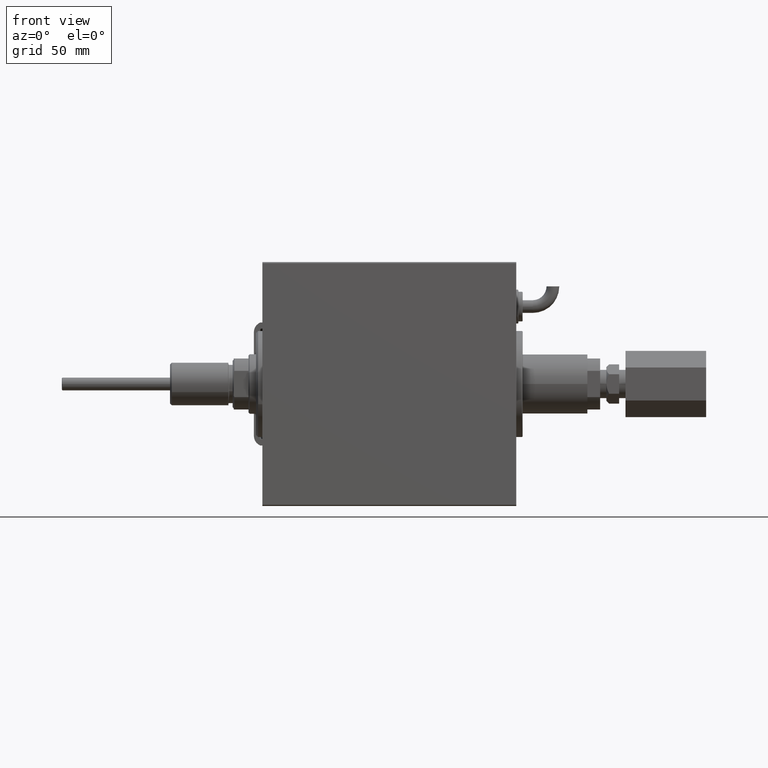
[diagram: clean part render]
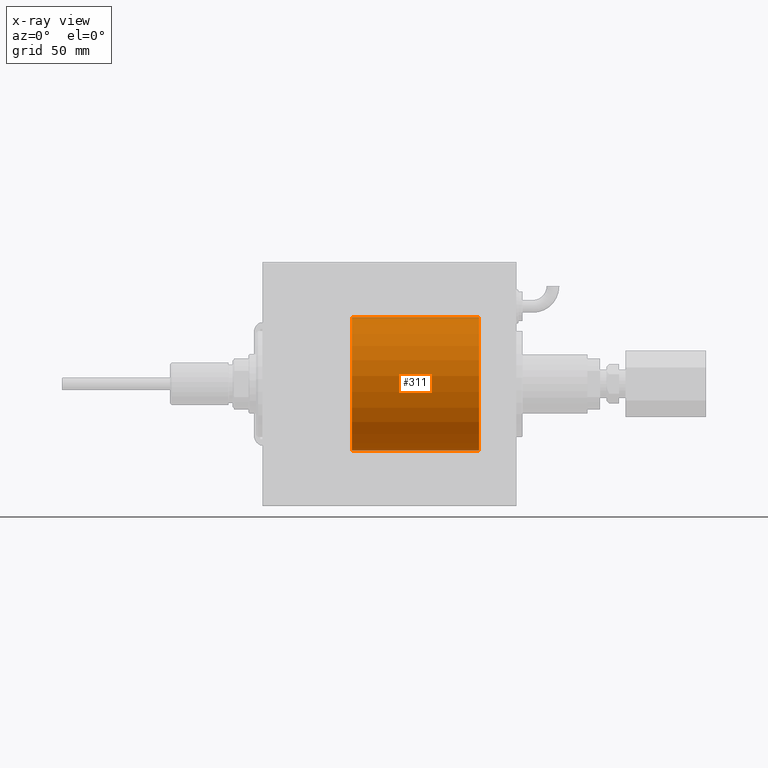
[diagram: x-ray — body ghosted, one internal face saturated and labeled with its STEP entity id]
A machine part, front view, then the same camera in x-ray: the body is ghosted and one INTERNAL B-rep face — a face not visible from any outside direction — is saturated and labeled: STEP entity #311.
In plain terms, the highlighted cylindrical surface (partial cylindrical patch) has radius 31.5 mm, axis along (-1, -0, -0).
Its self-contained STEP definition (entity closure, byte-faithful):
#311 = ADVANCED_FACE ( 'NONE', ( #11094 ), #1209, .F. ) ;
#620 = CIRCLE ( 'NONE', #41052, 31.50000000000000000 ) ;
#713 = VERTEX_POINT ( 'NONE', #7426 ) ;
#1209 = CYLINDRICAL_SURFACE ( 'NONE', #23553, 31.50000000000000000 ) ;
#1554 = CARTESIAN_POINT ( 'NONE',  ( 88.87295774629731682, -2.387531469909793813, -31.40957782495775419 ) ) ;
#1668 = DIRECTION ( 'NONE',  ( 0.000000000000000000, 0.000000000000000000, 1.000000000000000000 ) ) ;
#1893 = CIRCLE ( 'NONE', #45293, 31.50000000000000000 ) ;
#2151 = CARTESIAN_POINT ( 'NONE',  ( 91.66944455658521917, -2.845838211243349569, -31.37127560316186603 ) ) ;
#2402 = VERTEX_POINT ( 'NONE', #59264 ) ;
#2997 = DIRECTION ( 'NONE',  ( -1.000000000000000000, -0.000000000000000000, -0.000000000000000000 ) ) ;
#3210 = ORIENTED_EDGE ( 'NONE', *, *, #32247, .F. ) ;
#4384 = LINE ( 'NONE', #18930, #59177 ) ;
#4445 = CARTESIAN_POINT ( 'NONE',  ( 102.2000000000000028, 0.000000000000000000, 31.50000000000000000 ) ) ;
#5872 = CARTESIAN_POINT ( 'NONE',  ( 87.70000000000000284, -1.457662500692042870E-14, -31.50000000000000000 ) ) ;
#5890 = CARTESIAN_POINT ( 'NONE',  ( 89.92530905565628530, -2.904836261170123279, -31.36579955910873707 ) ) ;
#6073 = CARTESIAN_POINT ( 'NONE',  ( 42.20000000000000284, 3.857637417314162689E-15, -31.50000000000000000 ) ) ;
#6494 = CARTESIAN_POINT ( 'NONE',  ( 92.53043691487003741, -2.384935707362453527, -31.40977595730572958 ) ) ;
#7201 = DIRECTION ( 'NONE',  ( -1.000000000000000000, 0.000000000000000000, 0.000000000000000000 ) ) ;
#7327 = LINE ( 'NONE', #4445, #23907 ) ;
#7426 = CARTESIAN_POINT ( 'NONE',  ( 102.2000000000000028, 0.000000000000000000, 31.50000000000000000 ) ) ;
#8235 = ORIENTED_EDGE ( 'NONE', *, *, #10836, .T. ) ;
#8923 = VERTEX_POINT ( 'NONE', #6073 ) ;
#9388 = ORIENTED_EDGE ( 'NONE', *, *, #26176, .T. ) ;
#10527 = CARTESIAN_POINT ( 'NONE',  ( 93.39714238836697291, -1.328004386210309251, -31.47251238182140298 ) ) ;
#10537 = EDGE_LOOP ( 'NONE', ( #3210, #8235, #56908, #9388, #42783, #52961 ) ) ;
#10590 = CARTESIAN_POINT ( 'NONE',  ( 102.2000000000000028, 3.857637417314162689E-15, -31.50000000000000000 ) ) ;
#10829 = CARTESIAN_POINT ( 'NONE',  ( 92.96095462456129610, -1.981494824113335218, -31.43792153503155973 ) ) ;
#10836 = EDGE_CURVE ( 'NONE', #34177, #33360, #4384, .T. ) ;
#10893 = LINE ( 'NONE', #10590, #40892 ) ;
#11094 = FACE_OUTER_BOUND ( 'NONE', #10537, .T. ) ;
#11135 = CARTESIAN_POINT ( 'NONE',  ( 87.70000000000000284, -1.457662500692042870E-14, -31.50000000000000000 ) ) ;
#11403 = CARTESIAN_POINT ( 'NONE',  ( 102.2000000000000028, 0.000000000000000000, 0.000000000000000000 ) ) ;
#11747 = CARTESIAN_POINT ( 'NONE',  ( 87.77979337049957564, -0.7905881588836303209, -31.49214662150069799 ) ) ;
#15178 = CARTESIAN_POINT ( 'NONE',  ( 88.09807859560848442, -1.506272792558350559, -31.46439306106695710 ) ) ;
#15489 = CARTESIAN_POINT ( 'NONE',  ( 89.73484270189362633, -2.847307171789055236, -31.37114183851420179 ) ) ;
#15796 = CARTESIAN_POINT ( 'NONE',  ( 93.70000000000000284, 3.857637396144153386E-15, -31.50000000000000000 ) ) ;
#16391 = CARTESIAN_POINT ( 'NONE',  ( 90.30885452660058377, -2.980809450819718709, -31.35867074198615256 ) ) ;
#18313 = DIRECTION ( 'NONE',  ( -1.000000000000000000, -0.000000000000000000, -0.000000000000000000 ) ) ;
#18930 = CARTESIAN_POINT ( 'NONE',  ( 102.2000000000000028, 3.857637417314162689E-15, -31.50000000000000000 ) ) ;
#20727 = CARTESIAN_POINT ( 'NONE',  ( 91.09534111000094470, -2.980257240990070056, -31.35872356503798741 ) ) ;
#21081 = DIRECTION ( 'NONE',  ( 0.000000000000000000, 0.000000000000000000, 1.000000000000000000 ) ) ;
#21181 = VERTEX_POINT ( 'NONE', #5872 ) ;
#23553 = AXIS2_PLACEMENT_3D ( 'NONE', #11403, #29642, #38903 ) ;
#23907 = VECTOR ( 'NONE', #2997, 1000.000000000000000 ) ;
#25048 = CARTESIAN_POINT ( 'NONE',  ( 93.68101509391517823, -0.3904857149112009873, -31.49817436802766935 ) ) ;
#26176 = EDGE_CURVE ( 'NONE', #21181, #8923, #10893, .T. ) ;
#27233 = B_SPLINE_CURVE_WITH_KNOTS ( 'NONE', 3,
 ( #15796, #38638, #25048, #44806, #39246, #10527, #34606, #58718, #10829, #34307, #6494, #34907, #29375, #2151, #29677, #20727, #48534, #43592, #16391, #5890, #15489, #52878, #39850, #1554, #57511, #48229, #48841, #15178, #35201, #11747, #44500, #11135 ),
 .UNSPECIFIED., .F., .F.,
 ( 4, 2, 2, 2, 2, 2, 2, 2, 2, 2, 2, 2, 2, 2, 2, 4 ),
 ( 0.009384682587134676041, 0.009971088165454077001, 0.01055749374377347796, 0.01114389932209287892, 0.01173030490041227988, 0.01231671047873168258, 0.01290311605705108354, 0.01348952163537048624, 0.01407592721368988720, 0.01466233279200928816, 0.01524873837032868912, 0.01583514394864809008, 0.01642154952696749104, 0.01700795510528689547, 0.01759436068360629296, 0.01876717184024510182 ),
 .UNSPECIFIED. ) ;
#29375 = CARTESIAN_POINT ( 'NONE',  ( 92.03239958099167950, -2.695056442718548606, -31.38458855656186941 ) ) ;
#29439 = DIRECTION ( 'NONE',  ( -1.000000000000000000, -0.000000000000000000, -0.000000000000000000 ) ) ;
#29642 = DIRECTION ( 'NONE',  ( -1.000000000000000000, -0.000000000000000000, -0.000000000000000000 ) ) ;
#29677 = CARTESIAN_POINT ( 'NONE',  ( 91.47881912642321822, -2.903733559410697662, -31.36590199989304395 ) ) ;
#32247 = EDGE_CURVE ( 'NONE', #34177, #713, #620, .T. ) ;
#33360 = VERTEX_POINT ( 'NONE', #34261 ) ;
#34177 = VERTEX_POINT ( 'NONE', #52841 ) ;
#34261 = CARTESIAN_POINT ( 'NONE',  ( 93.70000000000000284, 3.857637396144153386E-15, -31.50000000000000000 ) ) ;
#34307 = CARTESIAN_POINT ( 'NONE',  ( 92.68460359924667102, -2.258226318633793195, -31.41925597582825702 ) ) ;
#34606 = CARTESIAN_POINT ( 'NONE',  ( 93.30417781274726963, -1.502389880412997591, -31.46458023642405166 ) ) ;
#34907 = CARTESIAN_POINT ( 'NONE',  ( 92.20456285006999053, -2.602826974226412737, -31.39247100434485560 ) ) ;
#35201 = CARTESIAN_POINT ( 'NONE',  ( 88.00470357640989505, -1.331741824817676223, -31.47235367475392920 ) ) ;
#35559 = DIRECTION ( 'NONE',  ( -1.000000000000000000, 0.000000000000000000, 0.000000000000000000 ) ) ;
#36199 = EDGE_CURVE ( 'NONE', #33360, #21181, #27233, .T. ) ;
#38638 = CARTESIAN_POINT ( 'NONE',  ( 93.70000000000001705, -0.1958045626907428394, -31.50000000000000000 ) ) ;
#38903 = DIRECTION ( 'NONE',  ( 0.000000000000000000, 0.000000000000000000, 1.000000000000000000 ) ) ;
#39246 = CARTESIAN_POINT ( 'NONE',  ( 93.54660463742500554, -0.9669616078782005131, -31.48567319468627446 ) ) ;
#39850 = CARTESIAN_POINT ( 'NONE',  ( 89.19901843703853217, -2.604888532024811187, -31.39229907792057972 ) ) ;
#40892 = VECTOR ( 'NONE', #29439, 1000.000000000000000 ) ;
#41052 = AXIS2_PLACEMENT_3D ( 'NONE', #53601, #7201, #1668 ) ;
#42783 = ORIENTED_EDGE ( 'NONE', *, *, #42939, .T. ) ;
#42939 = EDGE_CURVE ( 'NONE', #8923, #2402, #1893, .T. ) ;
#43592 = CARTESIAN_POINT ( 'NONE',  ( 90.50417705560563775, -3.000152387858503022, -31.35680286115500337 ) ) ;
#44500 = CARTESIAN_POINT ( 'NONE',  ( 87.70000000000000284, -0.3965830985361892824, -31.50000000000000000 ) ) ;
#44806 = CARTESIAN_POINT ( 'NONE',  ( 93.60419450738055502, -0.7775502215293849106, -31.49099686045558144 ) ) ;
#44866 = CARTESIAN_POINT ( 'NONE',  ( 42.20000000000000284, 0.000000000000000000, 0.000000000000000000 ) ) ;
#45293 = AXIS2_PLACEMENT_3D ( 'NONE', #44866, #35559, #21081 ) ;
#48229 = CARTESIAN_POINT ( 'NONE',  ( 88.44175498096734600, -1.984587626072093824, -31.43772577203672469 ) ) ;
#48534 = CARTESIAN_POINT ( 'NONE',  ( 90.90046458974094890, -2.999845816735311477, -31.35683219171744796 ) ) ;
#48841 = CARTESIAN_POINT ( 'NONE',  ( 88.31753127733372821, -1.833765390051066424, -31.44700610425690002 ) ) ;
#50518 = EDGE_CURVE ( 'NONE', #713, #2402, #7327, .T. ) ;
#52841 = CARTESIAN_POINT ( 'NONE',  ( 102.2000000000000028, 3.857637417314162689E-15, -31.50000000000000000 ) ) ;
#52878 = CARTESIAN_POINT ( 'NONE',  ( 89.37134585312492163, -2.696917666262926172, -31.38442820068732075 ) ) ;
#52961 = ORIENTED_EDGE ( 'NONE', *, *, #50518, .F. ) ;
#53601 = CARTESIAN_POINT ( 'NONE',  ( 102.2000000000000028, 0.000000000000000000, 0.000000000000000000 ) ) ;
#56908 = ORIENTED_EDGE ( 'NONE', *, *, #36199, .T. ) ;
#57511 = CARTESIAN_POINT ( 'NONE',  ( 88.71856537126957676, -2.261012035264801323, -31.41905495618427935 ) ) ;
#58718 = CARTESIAN_POINT ( 'NONE',  ( 93.08501442276926241, -1.830470878313876559, -31.44719957596828763 ) ) ;
#59177 = VECTOR ( 'NONE', #18313, 1000.000000000000000 ) ;
#59264 = CARTESIAN_POINT ( 'NONE',  ( 42.20000000000000284, 0.000000000000000000, 31.50000000000000000 ) ) ;